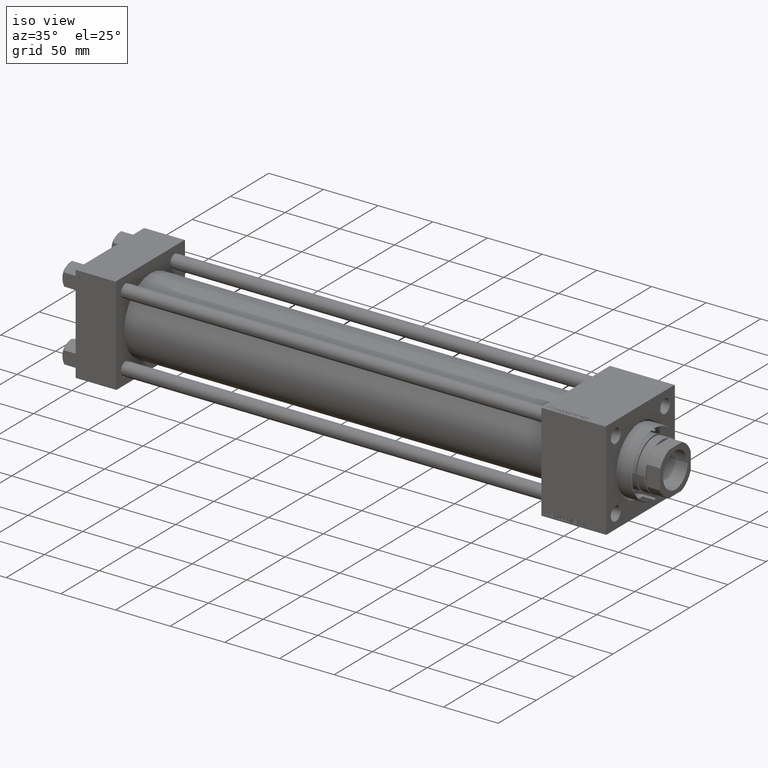
[diagram: clean part render]
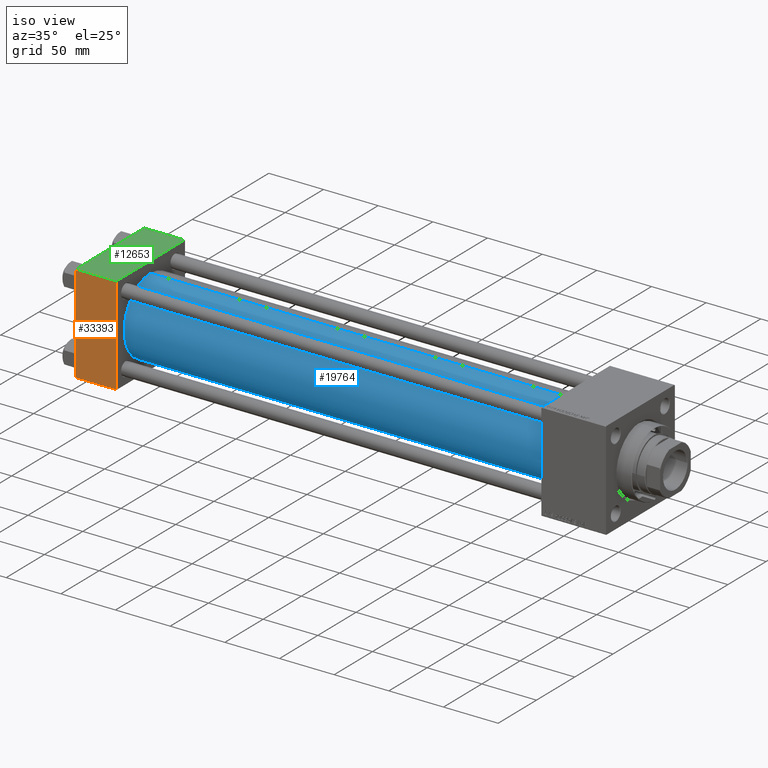
[diagram: same view with three faces highlighted in distinct colors, each labeled with its STEP entity id]
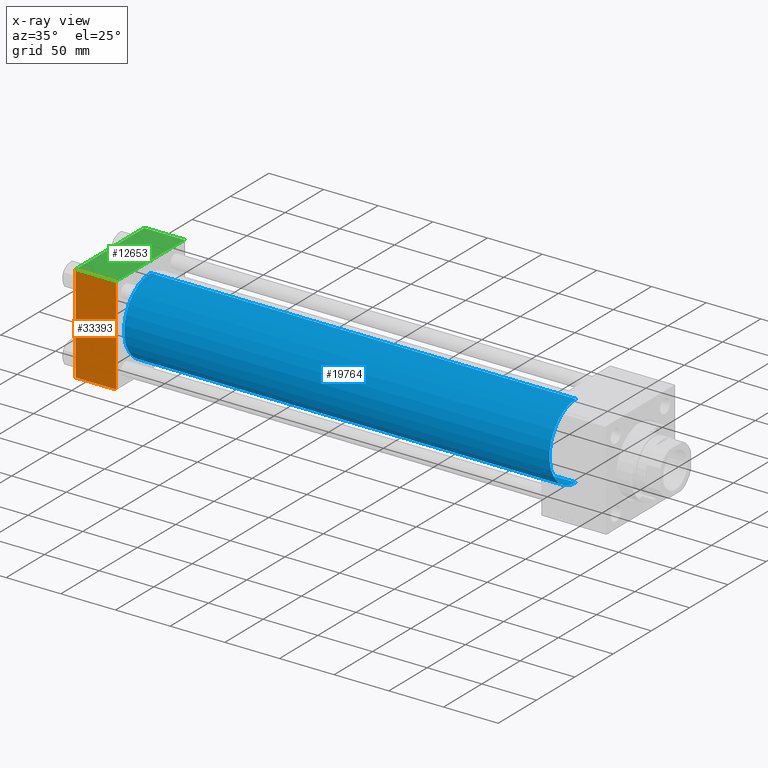
[diagram: x-ray of the same camera — body ghosted, the three highlighted faces saturated]
A machine part, iso view with three faces highlighted in distinct colors.
The next image is the same camera in x-ray (body ghosted, the three faces saturated) — at least one of them is partly hidden behind the body in this view.
Their STEP definitions:

[orange] entity #33393 — the highlighted planar face has unit normal (0, 1, 0).
#1413 = DIRECTION ( 'NONE',  ( 0.000000000000000000, -7.709882115452478166E-17, 1.000000000000000000 ) ) ;
#1789 = ORIENTED_EDGE ( 'NONE', *, *, #35574, .T. ) ;
#2421 = FACE_OUTER_BOUND ( 'NONE', #9858, .T. ) ;
#3014 = EDGE_CURVE ( 'NONE', #35438, #27566, #35363, .T. ) ;
#3337 = CARTESIAN_POINT ( 'NONE',  ( 37.00000000000000000, -45.00000000000000000, -44.49999999999995737 ) ) ;
#5226 = DIRECTION ( 'NONE',  ( -0.000000000000000000, 1.000000000000000000, 7.709882115452478166E-17 ) ) ;
#6939 = AXIS2_PLACEMENT_3D ( 'NONE', #17922, #5226, #1413 ) ;
#7855 = VERTEX_POINT ( 'NONE', #41597 ) ;
#8927 = CARTESIAN_POINT ( 'NONE',  ( 37.00000000000000000, -45.00000000000000711, 44.49999999999997158 ) ) ;
#9858 = EDGE_LOOP ( 'NONE', ( #1789, #42478, #26774, #21706 ) ) ;
#12208 = CARTESIAN_POINT ( 'NONE',  ( 37.00000000000000000, -45.00000000000000711, 45.00000000000000000 ) ) ;
#13044 = VERTEX_POINT ( 'NONE', #24319 ) ;
#14348 = CARTESIAN_POINT ( 'NONE',  ( 0.000000000000000000, -45.00000000000000711, 45.00000000000000000 ) ) ;
#17905 = CARTESIAN_POINT ( 'NONE',  ( 37.00000000000000000, -45.00000000000000711, 44.49999999999997158 ) ) ;
#17922 = CARTESIAN_POINT ( 'NONE',  ( 37.00000000000000000, -45.00000000000000711, 45.00000000000000000 ) ) ;
#18953 = VECTOR ( 'NONE', #47561, 1000.000000000000000 ) ;
#21706 = ORIENTED_EDGE ( 'NONE', *, *, #38793, .T. ) ;
#24319 = CARTESIAN_POINT ( 'NONE',  ( 0.000000000000000000, -45.00000000000000000, -44.49999999999995737 ) ) ;
#25464 = LINE ( 'NONE', #8927, #26628 ) ;
#26628 = VECTOR ( 'NONE', #29025, 1000.000000000000000 ) ;
#26774 = ORIENTED_EDGE ( 'NONE', *, *, #3014, .F. ) ;
#26806 = DIRECTION ( 'NONE',  ( 0.000000000000000000, 7.709882115452476934E-17, -1.000000000000000000 ) ) ;
#27566 = VERTEX_POINT ( 'NONE', #3337 ) ;
#29025 = DIRECTION ( 'NONE',  ( -1.000000000000000000, 0.000000000000000000, 0.000000000000000000 ) ) ;
#33393 = ADVANCED_FACE ( 'NONE', ( #2421 ), #37015, .F. ) ;
#33814 = VECTOR ( 'NONE', #26806, 1000.000000000000000 ) ;
#35105 = EDGE_CURVE ( 'NONE', #13044, #27566, #39117, .T. ) ;
#35363 = LINE ( 'NONE', #12208, #18953 ) ;
#35438 = VERTEX_POINT ( 'NONE', #17905 ) ;
#35574 = EDGE_CURVE ( 'NONE', #7855, #13044, #49191, .T. ) ;
#37015 = PLANE ( 'NONE',  #6939 ) ;
#38116 = DIRECTION ( 'NONE',  ( 1.000000000000000000, 0.000000000000000000, 0.000000000000000000 ) ) ;
#38366 = CARTESIAN_POINT ( 'NONE',  ( 37.00000000000000000, -45.00000000000000000, -44.49999999999998579 ) ) ;
#38793 = EDGE_CURVE ( 'NONE', #35438, #7855, #25464, .T. ) ;
#39117 = LINE ( 'NONE', #38366, #39511 ) ;
#39511 = VECTOR ( 'NONE', #38116, 1000.000000000000000 ) ;
#41597 = CARTESIAN_POINT ( 'NONE',  ( 0.000000000000000000, -45.00000000000000711, 44.49999999999997158 ) ) ;
#42478 = ORIENTED_EDGE ( 'NONE', *, *, #35105, .T. ) ;
#47561 = DIRECTION ( 'NONE',  ( 0.000000000000000000, 7.709882115452476934E-17, -1.000000000000000000 ) ) ;
#49191 = LINE ( 'NONE', #14348, #33814 ) ;

[blue] entity #19764 — the highlighted cylindrical surface (partial cylindrical patch) has radius 34.5 mm, axis along (-1, -0, -0).
#735 = CARTESIAN_POINT ( 'NONE',  ( 36.99999999999997868, 1.622946243093158675E-15, -34.50000000000000000 ) ) ;
#4089 = ORIENTED_EDGE ( 'NONE', *, *, #39206, .T. ) ;
#6197 = CARTESIAN_POINT ( 'NONE',  ( 426.0000000000000000, -2.602085213965210642E-15, 34.50000000000000000 ) ) ;
#6804 = CIRCLE ( 'NONE', #39307, 34.50000000000000000 ) ;
#7512 = DIRECTION ( 'NONE',  ( 0.000000000000000000, 0.000000000000000000, 1.000000000000000000 ) ) ;
#7632 = CARTESIAN_POINT ( 'NONE',  ( 426.0000000000000000, -2.602085213965210642E-15, 0.000000000000000000 ) ) ;
#7853 = DIRECTION ( 'NONE',  ( 0.000000000000000000, 0.000000000000000000, -1.000000000000000000 ) ) ;
#11200 = CYLINDRICAL_SURFACE ( 'NONE', #48845, 34.50000000000000000 ) ;
#13470 = EDGE_LOOP ( 'NONE', ( #50342, #18709, #4089, #24845 ) ) ;
#15908 = CARTESIAN_POINT ( 'NONE',  ( 36.99999999999997868, -2.602085213965210642E-15, 0.000000000000000000 ) ) ;
#17723 = VECTOR ( 'NONE', #37589, 1000.000000000000000 ) ;
#18709 = ORIENTED_EDGE ( 'NONE', *, *, #25195, .F. ) ;
#18831 = FACE_OUTER_BOUND ( 'NONE', #13470, .T. ) ;
#18971 = DIRECTION ( 'NONE',  ( 1.000000000000000000, -0.000000000000000000, 0.000000000000000000 ) ) ;
#19764 = ADVANCED_FACE ( 'NONE', ( #18831 ), #11200, .T. ) ;
#20115 = AXIS2_PLACEMENT_3D ( 'NONE', #15908, #18971, #7512 ) ;
#20738 = CARTESIAN_POINT ( 'NONE',  ( 426.0000000000000000, 1.622946243093158675E-15, -34.50000000000000000 ) ) ;
#21003 = EDGE_CURVE ( 'NONE', #42062, #25312, #47898, .T. ) ;
#21721 = VERTEX_POINT ( 'NONE', #31784 ) ;
#23170 = DIRECTION ( 'NONE',  ( -1.000000000000000000, -0.000000000000000000, -0.000000000000000000 ) ) ;
#24515 = CARTESIAN_POINT ( 'NONE',  ( 426.0000000000000000, 1.622946243093158675E-15, -34.50000000000000000 ) ) ;
#24845 = ORIENTED_EDGE ( 'NONE', *, *, #41998, .T. ) ;
#25195 = EDGE_CURVE ( 'NONE', #40298, #42062, #6804, .T. ) ;
#25312 = VERTEX_POINT ( 'NONE', #735 ) ;
#31784 = CARTESIAN_POINT ( 'NONE',  ( 36.99999999999997868, -2.602085213965210642E-15, 34.50000000000000000 ) ) ;
#32685 = VECTOR ( 'NONE', #40035, 1000.000000000000000 ) ;
#33528 = CARTESIAN_POINT ( 'NONE',  ( 426.0000000000000000, -2.602085213965210642E-15, 34.50000000000000000 ) ) ;
#34326 = CARTESIAN_POINT ( 'NONE',  ( 426.0000000000000000, -2.602085213965210642E-15, 0.000000000000000000 ) ) ;
#37589 = DIRECTION ( 'NONE',  ( -1.000000000000000000, -0.000000000000000000, -0.000000000000000000 ) ) ;
#39206 = EDGE_CURVE ( 'NONE', #40298, #21721, #41914, .T. ) ;
#39307 = AXIS2_PLACEMENT_3D ( 'NONE', #34326, #42711, #7853 ) ;
#40035 = DIRECTION ( 'NONE',  ( -1.000000000000000000, -0.000000000000000000, -0.000000000000000000 ) ) ;
#40298 = VERTEX_POINT ( 'NONE', #6197 ) ;
#41914 = LINE ( 'NONE', #33528, #17723 ) ;
#41998 = EDGE_CURVE ( 'NONE', #21721, #25312, #42047, .T. ) ;
#42047 = CIRCLE ( 'NONE', #20115, 34.50000000000000000 ) ;
#42062 = VERTEX_POINT ( 'NONE', #20738 ) ;
#42711 = DIRECTION ( 'NONE',  ( 1.000000000000000000, 0.000000000000000000, 0.000000000000000000 ) ) ;
#47898 = LINE ( 'NONE', #24515, #32685 ) ;
#48845 = AXIS2_PLACEMENT_3D ( 'NONE', #7632, #23170, #49867 ) ;
#49867 = DIRECTION ( 'NONE',  ( 0.000000000000000000, 0.000000000000000000, 1.000000000000000000 ) ) ;
#50342 = ORIENTED_EDGE ( 'NONE', *, *, #21003, .F. ) ;

[green] entity #12653 — the highlighted planar face has unit normal (0, 0, -1).
#1113 = CARTESIAN_POINT ( 'NONE',  ( 0.000000000000000000, -44.49999999999995737, 45.00000000000000000 ) ) ;
#2461 = EDGE_CURVE ( 'NONE', #47595, #14138, #45365, .T. ) ;
#3055 = DIRECTION ( 'NONE',  ( 1.000000000000000000, 0.000000000000000000, 0.000000000000000000 ) ) ;
#3090 = CARTESIAN_POINT ( 'NONE',  ( 37.00000000000000000, 44.49999999999998579, 45.00000000000001421 ) ) ;
#6283 = CARTESIAN_POINT ( 'NONE',  ( 0.000000000000000000, 44.49999999999998579, 45.00000000000001421 ) ) ;
#6400 = VERTEX_POINT ( 'NONE', #3090 ) ;
#6628 = ORIENTED_EDGE ( 'NONE', *, *, #27619, .F. ) ;
#12653 = ADVANCED_FACE ( 'NONE', ( #33074 ), #13979, .F. ) ;
#13979 = PLANE ( 'NONE',  #26431 ) ;
#14138 = VERTEX_POINT ( 'NONE', #1113 ) ;
#14783 = LINE ( 'NONE', #30310, #25589 ) ;
#21816 = DIRECTION ( 'NONE',  ( -1.000000000000000000, 0.000000000000000000, 0.000000000000000000 ) ) ;
#22263 = ORIENTED_EDGE ( 'NONE', *, *, #37689, .T. ) ;
#23786 = VECTOR ( 'NONE', #44600, 1000.000000000000000 ) ;
#25322 = CARTESIAN_POINT ( 'NONE',  ( 0.000000000000000000, 44.49999999999998579, 45.00000000000001421 ) ) ;
#25589 = VECTOR ( 'NONE', #42255, 1000.000000000000000 ) ;
#25786 = ORIENTED_EDGE ( 'NONE', *, *, #45381, .T. ) ;
#26431 = AXIS2_PLACEMENT_3D ( 'NONE', #33319, #40446, #32563 ) ;
#27619 = EDGE_CURVE ( 'NONE', #6400, #28100, #14783, .T. ) ;
#28100 = VERTEX_POINT ( 'NONE', #29876 ) ;
#29876 = CARTESIAN_POINT ( 'NONE',  ( 37.00000000000000000, -44.49999999999995737, 45.00000000000000000 ) ) ;
#30019 = CARTESIAN_POINT ( 'NONE',  ( 37.00000000000000000, -44.49999999999998579, 45.00000000000000000 ) ) ;
#30310 = CARTESIAN_POINT ( 'NONE',  ( 37.00000000000000000, 44.99999999999998579, 45.00000000000001421 ) ) ;
#32563 = DIRECTION ( 'NONE',  ( 0.000000000000000000, 1.000000000000000000, 1.541976423090495633E-16 ) ) ;
#33074 = FACE_OUTER_BOUND ( 'NONE', #44871, .T. ) ;
#33319 = CARTESIAN_POINT ( 'NONE',  ( 37.00000000000000000, 44.99999999999998579, 45.00000000000001421 ) ) ;
#34024 = VECTOR ( 'NONE', #21816, 1000.000000000000000 ) ;
#37476 = CARTESIAN_POINT ( 'NONE',  ( 0.000000000000000000, 44.99999999999998579, 45.00000000000001421 ) ) ;
#37689 = EDGE_CURVE ( 'NONE', #14138, #28100, #38144, .T. ) ;
#38144 = LINE ( 'NONE', #30019, #49308 ) ;
#40446 = DIRECTION ( 'NONE',  ( 0.000000000000000000, 1.541976423090495633E-16, -1.000000000000000000 ) ) ;
#42255 = DIRECTION ( 'NONE',  ( 0.000000000000000000, -1.000000000000000000, -1.541976423090495387E-16 ) ) ;
#44427 = LINE ( 'NONE', #6283, #34024 ) ;
#44600 = DIRECTION ( 'NONE',  ( 0.000000000000000000, -1.000000000000000000, -1.541976423090495387E-16 ) ) ;
#44871 = EDGE_LOOP ( 'NONE', ( #48189, #22263, #6628, #25786 ) ) ;
#45365 = LINE ( 'NONE', #37476, #23786 ) ;
#45381 = EDGE_CURVE ( 'NONE', #6400, #47595, #44427, .T. ) ;
#47595 = VERTEX_POINT ( 'NONE', #25322 ) ;
#48189 = ORIENTED_EDGE ( 'NONE', *, *, #2461, .T. ) ;
#49308 = VECTOR ( 'NONE', #3055, 1000.000000000000000 ) ;